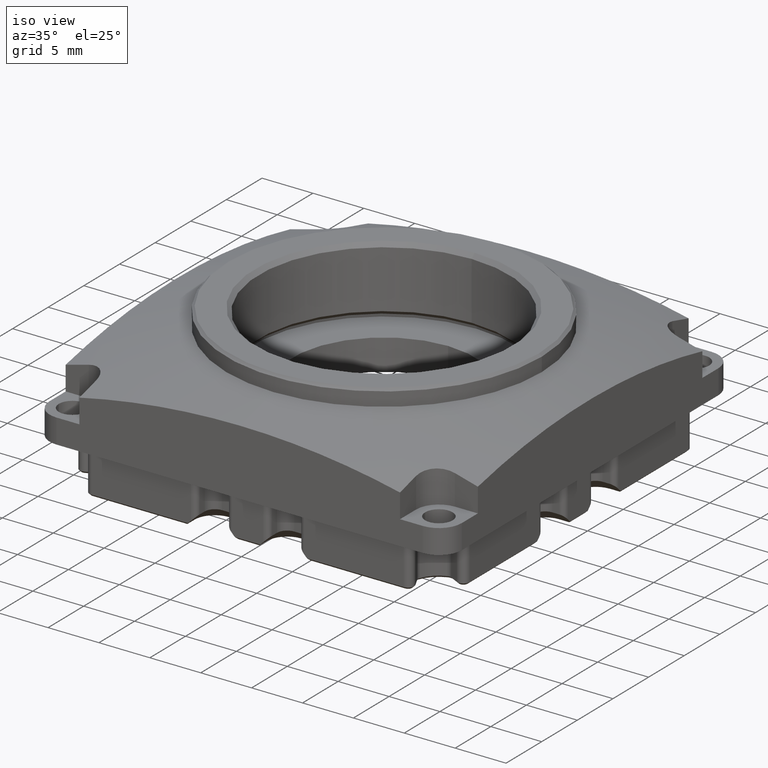
[diagram: clean part render]
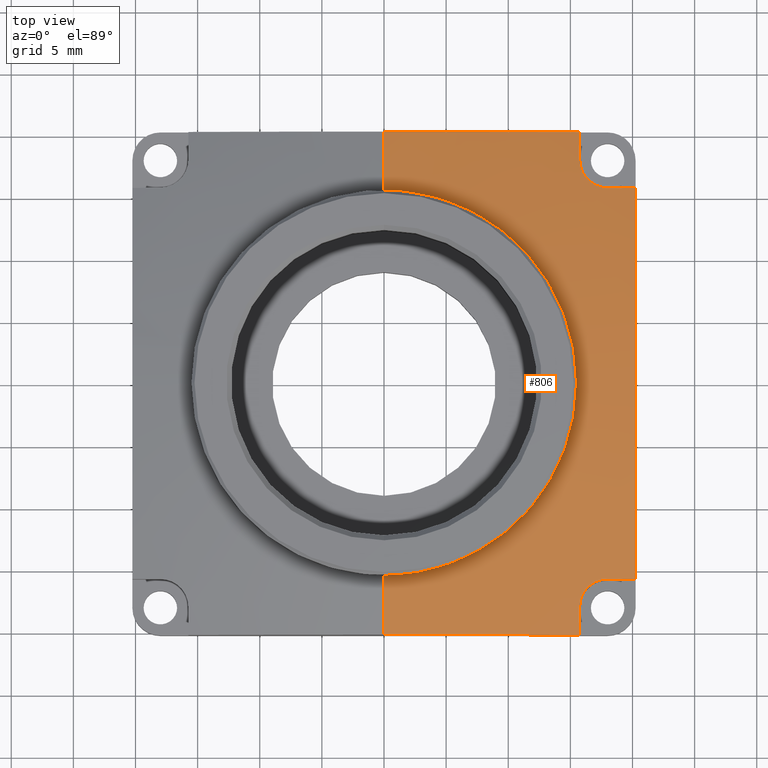
[diagram: tour spotlight — one face highlighted and labeled with its STEP entity id]
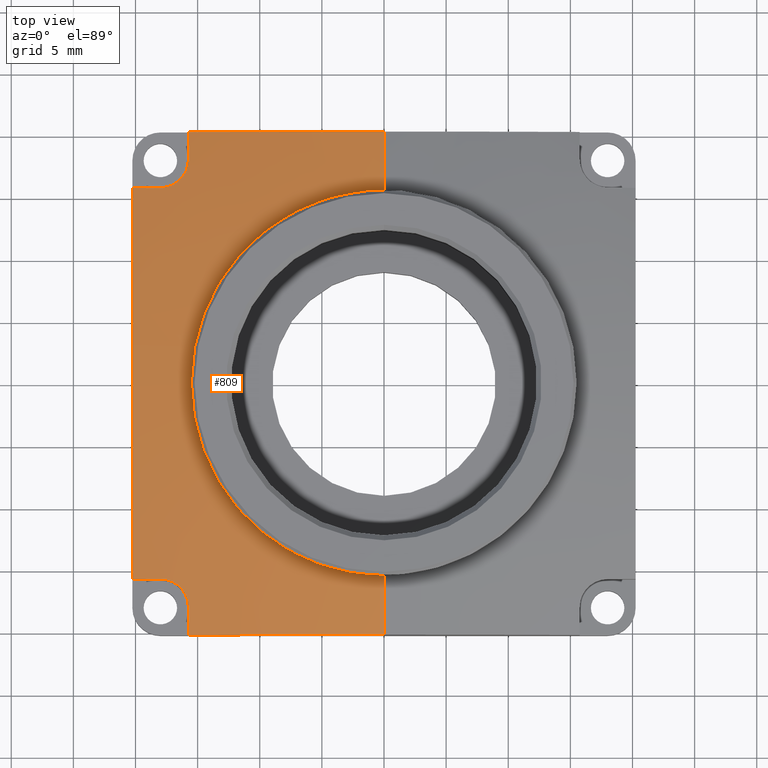
[diagram: tour spotlight — one face highlighted and labeled with its STEP entity id]
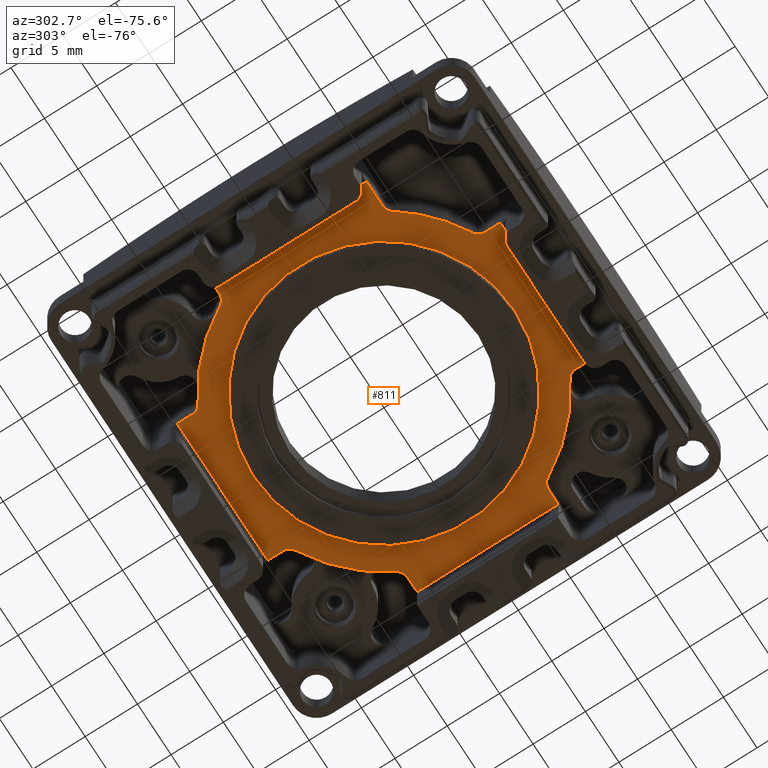
[diagram: tour spotlight — one face highlighted and labeled with its STEP entity id]
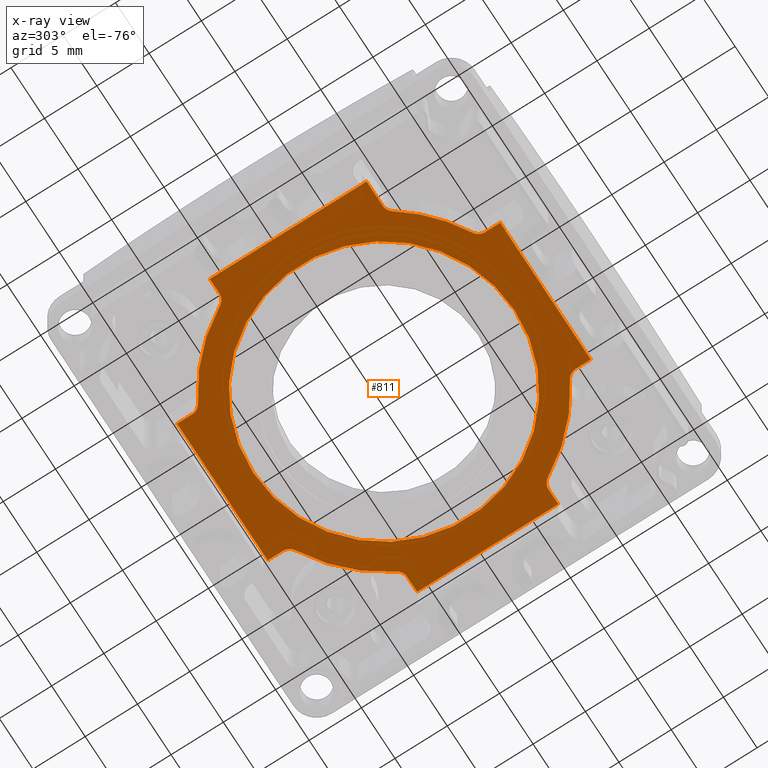
[diagram: x-ray of the same camera — body ghosted, this tour face saturated]
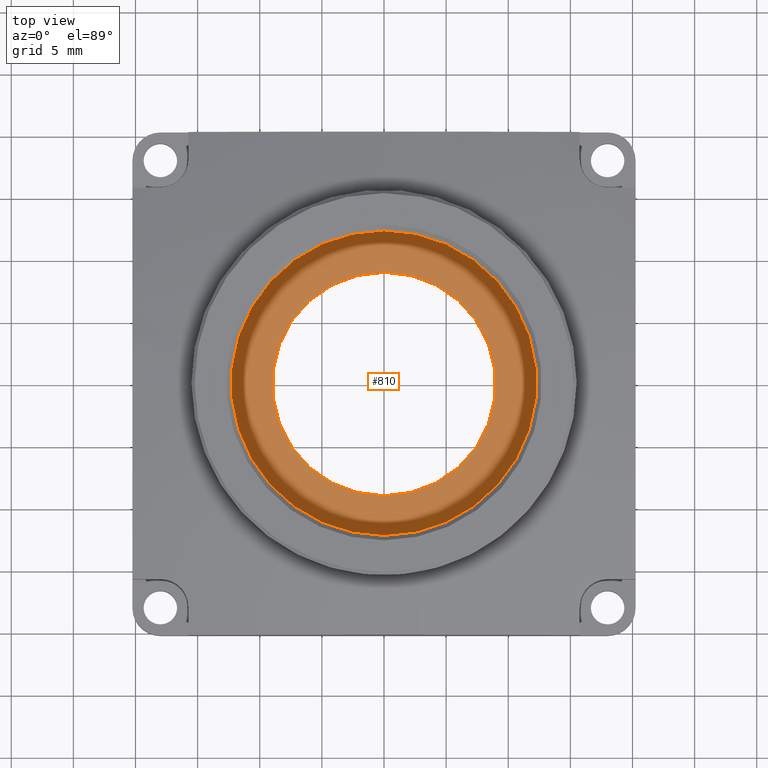
[diagram: tour spotlight — one face highlighted and labeled with its STEP entity id]
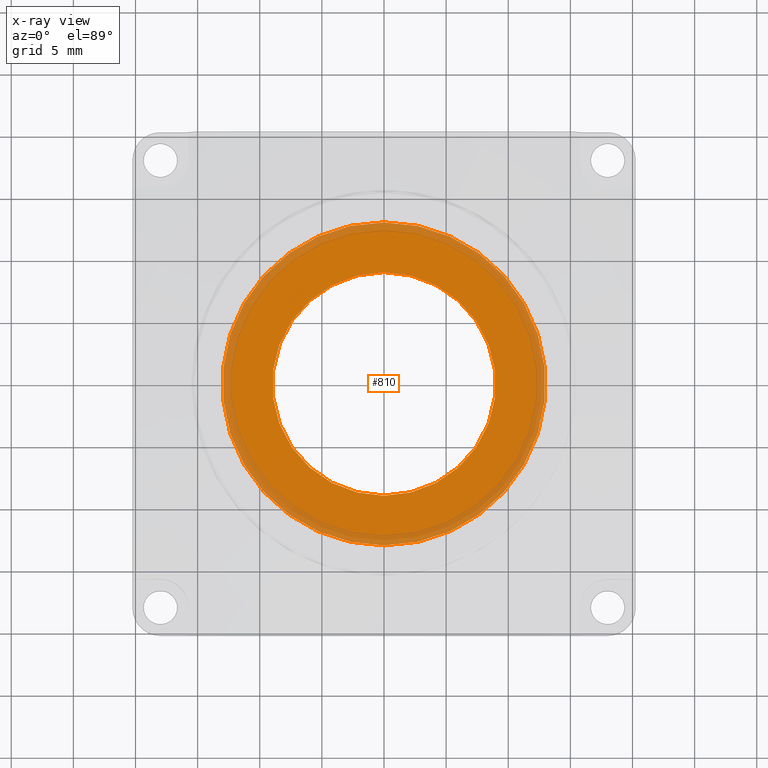
[diagram: x-ray of the same camera — body ghosted, this tour face saturated]
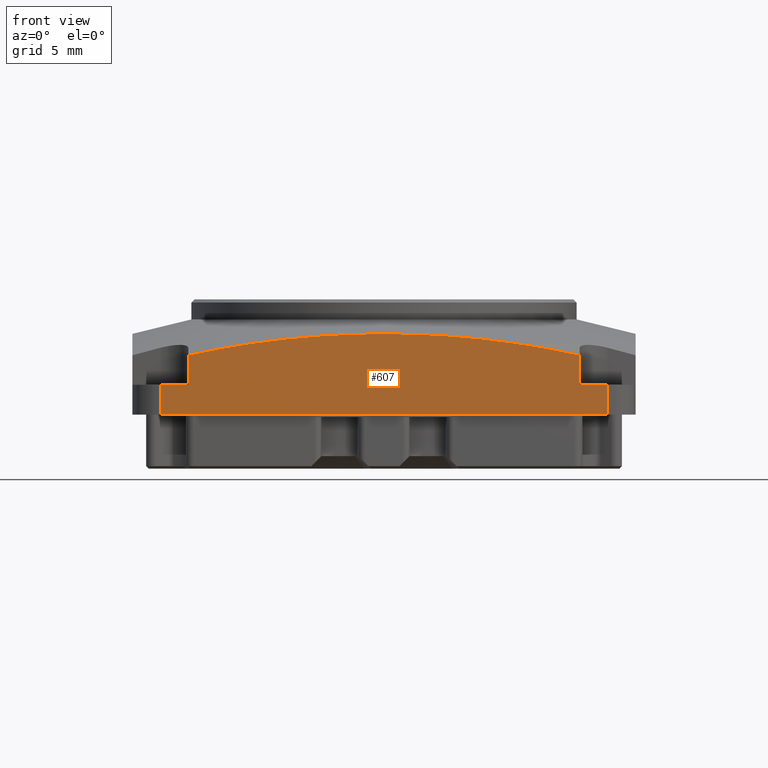
[diagram: tour spotlight — one face highlighted and labeled with its STEP entity id]
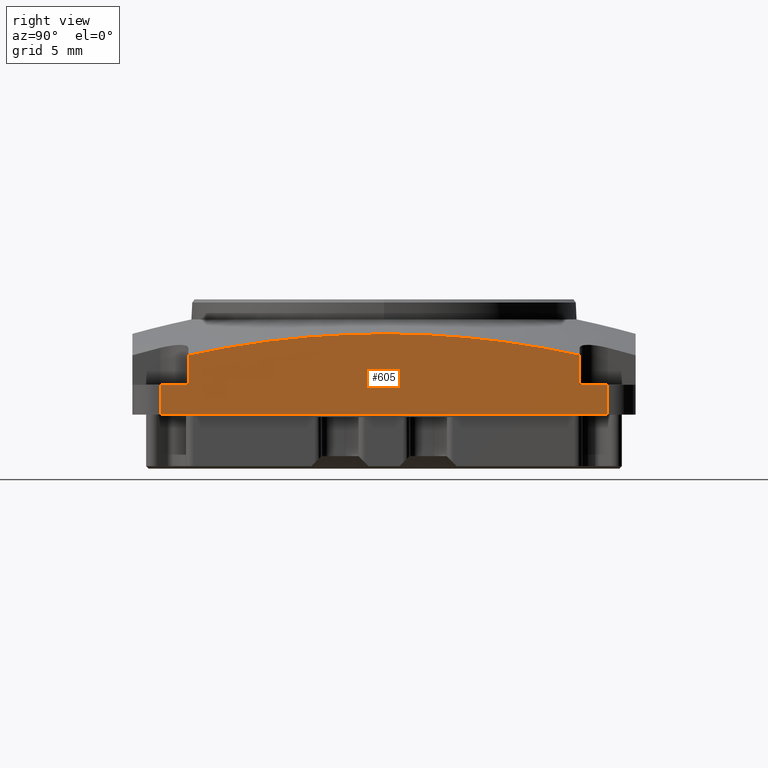
[diagram: tour spotlight — one face highlighted and labeled with its STEP entity id]
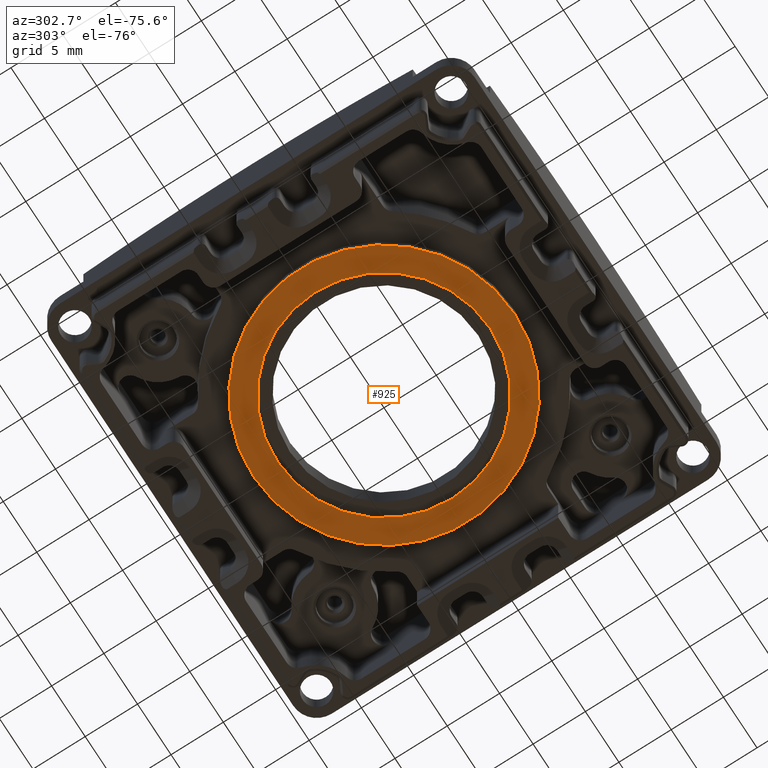
[diagram: tour spotlight — one face highlighted and labeled with its STEP entity id]
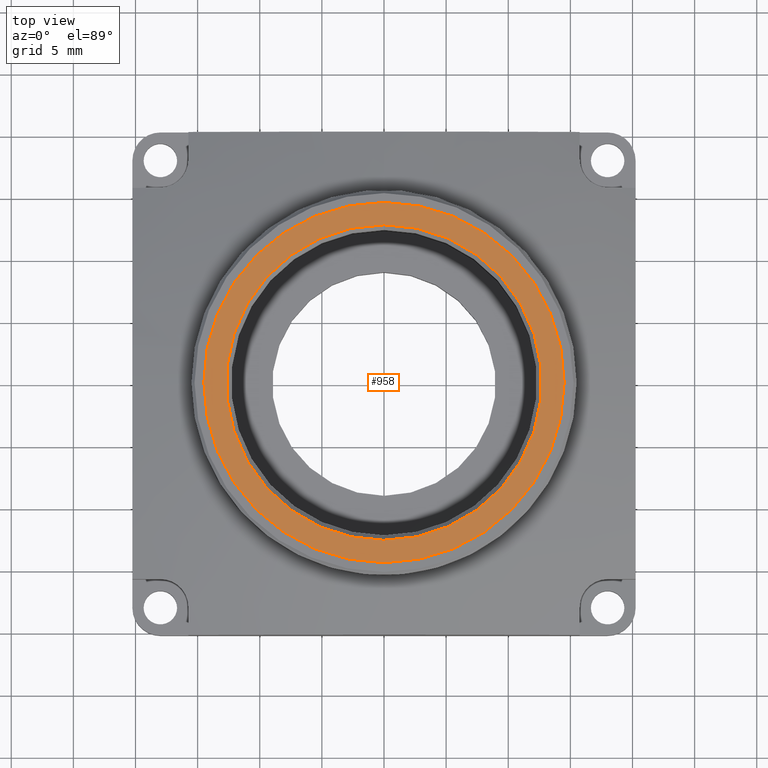
[diagram: tour spotlight — one face highlighted and labeled with its STEP entity id]
A machine part: a face-by-face anatomy tour. The part has 425 B-rep faces; the first image is the clean iso view, then the 8 largest visible faces are spotlighted one at a time (largest first), each with its STEP entity span.

Face 1 — top view, entity #806. In plain terms, the highlighted spherical surface has radius 75.4035 mm.
Definition (entity closure, byte-faithful):
#19=SPHERICAL_SURFACE('',#10691,75.4035018050466);
#806=ADVANCED_FACE('',(#1231),#19,.T.);
#1231=FACE_OUTER_BOUND('',#1689,.F.);
#1689=EDGE_LOOP('',(#3118,#3119,#3120,#3121,#3122,#3123,#3124,#3125,#3126,
#3127,#3128,#3129,#3130));
#3118=ORIENTED_EDGE('',*,*,#7644,.T.);
#3119=ORIENTED_EDGE('',*,*,#6949,.F.);
#3120=ORIENTED_EDGE('',*,*,#6943,.F.);
#3121=ORIENTED_EDGE('',*,*,#6941,.T.);
#3122=ORIENTED_EDGE('',*,*,#6942,.F.);
#3123=ORIENTED_EDGE('',*,*,#6948,.F.);
#3124=ORIENTED_EDGE('',*,*,#6945,.F.);
#3125=ORIENTED_EDGE('',*,*,#6944,.T.);
#3126=ORIENTED_EDGE('',*,*,#6946,.F.);
#3127=ORIENTED_EDGE('',*,*,#6947,.F.);
#3128=ORIENTED_EDGE('',*,*,#7643,.T.);
#3129=ORIENTED_EDGE('',*,*,#6929,.F.);
#3130=ORIENTED_EDGE('',*,*,#6930,.F.);
#6485=B_SPLINE_CURVE_WITH_KNOTS('',3,(#13935,#13936,#13937,#13938,#13939,
#13940,#13941,#13942,#13943),.UNSPECIFIED.,.F.,.F.,(4,1,1,1,1,1,4),(0.,0.195722745162091,
0.334272363656096,0.499996643167031,0.665720489316797,0.804273502584053,
1.),.UNSPECIFIED.);
#6486=B_SPLINE_CURVE_WITH_KNOTS('',3,(#13944,#13945,#13946,#13947,#13948,
#13949),.UNSPECIFIED.,.F.,.F.,(4,1,1,4),(0.,0.388882426202018,0.611104735399938,
1.),.UNSPECIFIED.);
#6487=B_SPLINE_CURVE_WITH_KNOTS('',3,(#13950,#13951,#13952,#13953,#13954,
#13955),.UNSPECIFIED.,.F.,.F.,(4,1,1,4),(0.,0.388895695557584,0.611117629474653,
1.),.UNSPECIFIED.);
#6488=B_SPLINE_CURVE_WITH_KNOTS('',3,(#13956,#13957,#13958,#13959,#13960,
#13961,#13962,#13963,#13964),.UNSPECIFIED.,.F.,.F.,(4,1,1,1,1,1,4),(0.,0.195722780090845,
0.334276008607449,0.500000536515706,0.665722115181062,0.804270485658548,
1.),.UNSPECIFIED.);
#6489=B_SPLINE_CURVE_WITH_KNOTS('',3,(#13965,#13966,#13967,#13968,#13969,
#13970),.UNSPECIFIED.,.F.,.F.,(4,1,1,4),(0.,0.388895264591296,0.611117573799259,
1.),.UNSPECIFIED.);
#6490=B_SPLINE_CURVE_WITH_KNOTS('',3,(#13971,#13972,#13973,#13974,#13975,
#13976),.UNSPECIFIED.,.F.,.F.,(4,1,1,4),(0.,0.388882370274556,0.611104304090351,
1.),.UNSPECIFIED.);
#6491=B_SPLINE_CURVE_WITH_KNOTS('',3,(#13977,#13978,#13979,#13980,#13981,
#13982),.UNSPECIFIED.,.F.,.F.,(4,1,1,4),(0.,0.388936537290058,0.611154345977415,
1.),.UNSPECIFIED.);
#6492=B_SPLINE_CURVE_WITH_KNOTS('',3,(#13983,#13984,#13985,#13986,#13987,
#13988,#13989,#13990,#13991,#13992),.UNSPECIFIED.,.F.,.F.,(4,1,1,1,1,1,1,
4),(0.,0.166651954956438,0.285699260477929,0.428564561865358,0.571435438132682,
0.714300739520617,0.833348045042723,1.),.UNSPECIFIED.);
#6493=B_SPLINE_CURVE_WITH_KNOTS('',3,(#13993,#13994,#13995,#13996,#13997,
#13998),.UNSPECIFIED.,.F.,.F.,(4,1,1,4),(0.,0.388845653991641,0.611063462721266,
1.),.UNSPECIFIED.);
#6537=CIRCLE('',#10106,15.5);
#6538=CIRCLE('',#10107,15.5);
#6770=CIRCLE('',#10339,75.4035018050466);
#6771=CIRCLE('',#10340,75.4035018050466);
#6929=EDGE_CURVE('',#10051,#10052,#6537,.T.);
#6930=EDGE_CURVE('',#10053,#10051,#6538,.T.);
#6941=EDGE_CURVE('',#10034,#10033,#6485,.T.);
#6942=EDGE_CURVE('',#10032,#10033,#6486,.T.);
#6943=EDGE_CURVE('',#10034,#10031,#6487,.T.);
#6944=EDGE_CURVE('',#10030,#10029,#6488,.T.);
#6945=EDGE_CURVE('',#10030,#10028,#6489,.T.);
#6946=EDGE_CURVE('',#10027,#10029,#6490,.T.);
#6947=EDGE_CURVE('',#10026,#10027,#6491,.T.);
#6948=EDGE_CURVE('',#10028,#10032,#6492,.T.);
#6949=EDGE_CURVE('',#10031,#10025,#6493,.T.);
#7643=EDGE_CURVE('',#10026,#10052,#6770,.T.);
#7644=EDGE_CURVE('',#10053,#10025,#6771,.T.);
#10025=VERTEX_POINT('',#13861);
#10026=VERTEX_POINT('',#13862);
#10027=VERTEX_POINT('',#13863);
#10028=VERTEX_POINT('',#13864);
#10029=VERTEX_POINT('',#13865);
#10030=VERTEX_POINT('',#13866);
#10031=VERTEX_POINT('',#13867);
#10032=VERTEX_POINT('',#13868);
#10033=VERTEX_POINT('',#13869);
#10034=VERTEX_POINT('',#13870);
#10051=VERTEX_POINT('',#13887);
#10052=VERTEX_POINT('',#13888);
#10053=VERTEX_POINT('',#13889);
#10106=AXIS2_PLACEMENT_3D('',#13923,#10931,#10932);
#10107=AXIS2_PLACEMENT_3D('',#13924,#10933,#10934);
#10339=AXIS2_PLACEMENT_3D('',#15003,#11828,#11829);
#10340=AXIS2_PLACEMENT_3D('',#15004,#11830,#11831);
#10691=AXIS2_PLACEMENT_3D('',#15590,#12767,#12768);
#10931=DIRECTION('',(0.,0.,-1.));
#10932=DIRECTION('',(1.,0.,0.));
#10933=DIRECTION('',(0.,0.,-1.));
#10934=DIRECTION('',(2.89876719677776E-07,0.999999999999958,0.));
#11828=DIRECTION('',(-1.,0.,0.));
#11829=DIRECTION('',(0.,-0.268555167673272,0.963264305326415));
#11830=DIRECTION('',(-1.,0.,0.));
#11831=DIRECTION('',(0.,0.205560745954179,0.978644358141793));
#12767=DIRECTION('',(0.,0.,1.));
#12768=DIRECTION('',(0.,-1.,0.));
#13861=CARTESIAN_POINT('',(6.49543768256228E-06,20.249992612398,6.50000208155392));
#13862=CARTESIAN_POINT('',(6.49543765833158E-06,-20.2499999918066,6.49999998037041));
#13863=CARTESIAN_POINT('',(15.7500071232071,-20.2500048381712,4.77180720905831));
#13864=CARTESIAN_POINT('',(20.2500049260386,-15.7500001432045,4.77180881998923));
#13865=CARTESIAN_POINT('',(15.7500069849177,-18.0000044829906,5.37611462647005));
#13866=CARTESIAN_POINT('',(18.0000114666578,-15.75,5.37611461480507));
#13867=CARTESIAN_POINT('',(15.750000123204,20.2499974591311,4.77181090996218));
#13868=CARTESIAN_POINT('',(20.2500049257107,15.7500001432044,4.77180885603019));
#13869=CARTESIAN_POINT('',(18.000004467281,15.75,5.37611641124811));
#13870=CARTESIAN_POINT('',(15.7499999849177,18.0000044826493,5.37611620749345));
#13887=CARTESIAN_POINT('',(15.5,0.,7.65970982059785));
#13888=CARTESIAN_POINT('',(5.1605386733593E-06,-15.4999999999984,7.65970983160435));
#13889=CARTESIAN_POINT('',(5.16053866275621E-06,15.5000000524001,7.65970983160369));
#13923=CARTESIAN_POINT('',(0.,0.,7.6597098205982));
#13924=CARTESIAN_POINT('',(0.,0.,7.65970982059718));
#13935=CARTESIAN_POINT('',(15.7499999842628,17.9999998828751,5.3761185062081));
#13936=CARTESIAN_POINT('',(15.7497920573884,17.7741302201016,5.43305716428891));
#13937=CARTESIAN_POINT('',(15.8085325422142,17.385341971661,5.51596169202965));
#13938=CARTESIAN_POINT('',(16.0468273640555,16.8392665831796,5.59326167853343));
#13939=CARTESIAN_POINT('',(16.3904814571824,16.3905125478258,5.61960073106723));
#13940=CARTESIAN_POINT('',(16.839241331539,16.0467497568912,5.59330704291233));
#13941=CARTESIAN_POINT('',(17.3853706536745,15.808788775482,5.51583350162874));
#13942=CARTESIAN_POINT('',(17.7741171062318,15.7494952203278,5.43319976586207));
#13943=CARTESIAN_POINT('',(17.9999998700155,15.7499999998595,5.37611870533698));
#13944=CARTESIAN_POINT('',(20.2500146527519,15.7499998315238,4.77180661013591));
#13945=CARTESIAN_POINT('',(19.9596143852073,15.7500001188704,4.85474262808686));
#13946=CARTESIAN_POINT('',(19.5024698328328,15.7499996421191,4.98226748649994));
#13947=CARTESIAN_POINT('',(18.7524296161023,15.7499998837082,5.1837145065966));
#13948=CARTESIAN_POINT('',(18.2928984578627,15.7500002093304,5.30239184283546));
#13949=CARTESIAN_POINT('',(18.0000135382368,15.7499999402359,5.37611527834614));
#13950=CARTESIAN_POINT('',(15.7499999345539,18.0000135550178,5.37611507136185));
#13951=CARTESIAN_POINT('',(15.7500000319567,18.2928978298511,5.30239181200087));
#13952=CARTESIAN_POINT('',(15.7499998329097,18.7524274914048,5.18371480966284));
#13953=CARTESIAN_POINT('',(15.7499998819146,19.5024651885576,4.98226835352871));
#13954=CARTESIAN_POINT('',(15.7500001056864,19.9596079182764,4.85474407397223));
#13955=CARTESIAN_POINT('',(15.7499996799084,20.2500071835964,4.77180835606796));
#13956=CARTESIAN_POINT('',(18.0000068681407,-15.7499999998925,5.37611690916954));
#13957=CARTESIAN_POINT('',(17.7741382999486,-15.7498487752388,5.43302862392873));
#13958=CARTESIAN_POINT('',(17.3853363747653,-15.8084911245042,5.51598324164691));
#13959=CARTESIAN_POINT('',(16.8392669944979,-16.0468586754146,5.59324876028554));
#13960=CARTESIAN_POINT('',(16.3905117118193,-16.3904813018487,5.61960277491143));
#13961=CARTESIAN_POINT('',(16.046709974389,-16.839252910984,5.59332162351996));
#13962=CARTESIAN_POINT('',(15.8089985284908,-17.3854016641018,5.51572799122959));
#13963=CARTESIAN_POINT('',(15.749217908129,-17.7741078663729,5.43333353395622));
#13964=CARTESIAN_POINT('',(15.7500069841253,-17.9999998839984,5.37611692467006));
#13965=CARTESIAN_POINT('',(18.0000205382393,-15.7499999402325,5.37611348174434));
#13966=CARTESIAN_POINT('',(18.2929045435372,-15.75000020927,5.30239024616845));
#13967=CARTESIAN_POINT('',(18.7524342686253,-15.7499998839424,5.18371323968692));
#13968=CARTESIAN_POINT('',(19.5024721528913,-15.7499996418959,4.9822668091581));
#13969=CARTESIAN_POINT('',(19.9596152876033,-15.7500001181239,4.85474233963873));
#13970=CARTESIAN_POINT('',(20.2500146541527,-15.7499998318156,4.77180657320933));
#13971=CARTESIAN_POINT('',(15.7500066780952,-20.2500145593352,4.77180465964869));
#13972=CARTESIAN_POINT('',(15.7500071072407,-19.9596143422935,4.85474066609423));
#13973=CARTESIAN_POINT('',(15.7500068821215,-19.5024701211391,4.98226541505517));
#13974=CARTESIAN_POINT('',(15.7500068323451,-18.7524299662396,5.18371258102134));
#13975=CARTESIAN_POINT('',(15.7500070323709,-18.2928987938552,5.30238998493524));
#13976=CARTESIAN_POINT('',(15.7500069348799,-18.0000135549818,5.37611349024143));
#13977=CARTESIAN_POINT('',(6.48988858450814E-06,-20.2499999918064,6.49999998037081));
#13978=CARTESIAN_POINT('',(2.05829365652238,-20.250021823305,6.49999994781413));
#13979=CARTESIAN_POINT('',(5.29184285539842,-20.2499871451885,6.36249366406992));
#13980=CARTESIAN_POINT('',(10.5552159288556,-20.2500036612267,5.78490503050373));
#13981=CARTESIAN_POINT('',(13.7411663345258,-20.2499979745086,5.21803371350374));
#13982=CARTESIAN_POINT('',(15.7500091918486,-20.2500001770446,4.77180814117882));
#13983=CARTESIAN_POINT('',(20.2500025179109,-15.7499999522637,4.77180969297896));
#13984=CARTESIAN_POINT('',(20.2499996136131,-14.0282038194073,5.15427440497723));
#13985=CARTESIAN_POINT('',(20.2499986926862,-11.0529062298854,5.70231253205944));
#13986=CARTESIAN_POINT('',(20.2499997847304,-6.54743730970562,6.24425964105236));
#13987=CARTESIAN_POINT('',(20.2500089562938,-2.26938416430171,6.51179919134352));
#13988=CARTESIAN_POINT('',(20.2500089562968,2.26938416038627,6.5117991963759));
#13989=CARTESIAN_POINT('',(20.2499997847294,6.54743730639547,6.2442596555733));
#13990=CARTESIAN_POINT('',(20.2499986926873,11.0529062277976,5.70231255656797));
#13991=CARTESIAN_POINT('',(20.2499996136103,14.0282038185499,5.15427443608139));
#13992=CARTESIAN_POINT('',(20.2500025179099,15.7499999522629,4.77180972789794));
#13993=CARTESIAN_POINT('',(15.7500021918682,20.2499927976363,4.77181184846042));
#13994=CARTESIAN_POINT('',(13.7411601960564,20.2499905951142,5.21803700775582));
#13995=CARTESIAN_POINT('',(10.5552111848702,20.2499962818513,5.7849077982139));
#13996=CARTESIAN_POINT('',(5.29184046357529,20.2499797654868,6.36249589367115));
#13997=CARTESIAN_POINT('',(2.05829272582885,20.2500144442674,6.50000204889615));
#13998=CARTESIAN_POINT('',(6.48988841578061E-06,20.2499926123978,6.5000020815542));
#15003=CARTESIAN_POINT('',(6.49543770229445E-06,7.85990942385987E-08,-66.1335018050467));
#15004=CARTESIAN_POINT('',(6.49543770229445E-06,7.85990942385987E-08,-66.1335018050467));
#15590=CARTESIAN_POINT('',(6.49543770229445E-06,7.86002879503948E-08,-66.1335018050467));

Face 2 — top view, entity #809. In plain terms, the highlighted spherical surface has radius 75.4035 mm.
Definition (entity closure, byte-faithful):
#20=SPHERICAL_SURFACE('',#10694,75.4035018050466);
#809=ADVANCED_FACE('',(#1234),#20,.T.);
#1234=FACE_OUTER_BOUND('',#1692,.F.);
#1692=EDGE_LOOP('',(#3139,#3140,#3141,#3142,#3143,#3144,#3145,#3146,#3147,
#3148,#3149,#3150,#3151));
#3139=ORIENTED_EDGE('',*,*,#7643,.F.);
#3140=ORIENTED_EDGE('',*,*,#6951,.F.);
#3141=ORIENTED_EDGE('',*,*,#6956,.F.);
#3142=ORIENTED_EDGE('',*,*,#6958,.T.);
#3143=ORIENTED_EDGE('',*,*,#6957,.F.);
#3144=ORIENTED_EDGE('',*,*,#6952,.F.);
#3145=ORIENTED_EDGE('',*,*,#6953,.F.);
#3146=ORIENTED_EDGE('',*,*,#6955,.T.);
#3147=ORIENTED_EDGE('',*,*,#6954,.F.);
#3148=ORIENTED_EDGE('',*,*,#6950,.F.);
#3149=ORIENTED_EDGE('',*,*,#7644,.F.);
#3150=ORIENTED_EDGE('',*,*,#6927,.F.);
#3151=ORIENTED_EDGE('',*,*,#6928,.F.);
#6494=B_SPLINE_CURVE_WITH_KNOTS('',3,(#13999,#14000,#14001,#14002,#14003,
#14004),.UNSPECIFIED.,.F.,.F.,(4,1,1,4),(0.,0.388936537310627,0.611154346037761,
1.),.UNSPECIFIED.);
#6495=B_SPLINE_CURVE_WITH_KNOTS('',3,(#14005,#14006,#14007,#14008,#14009,
#14010),.UNSPECIFIED.,.F.,.F.,(4,1,1,4),(0.,0.388845654027359,0.611063462715123,
1.),.UNSPECIFIED.);
#6496=B_SPLINE_CURVE_WITH_KNOTS('',3,(#14011,#14012,#14013,#14014,#14015,
#14016,#14017,#14018,#14019,#14020),.UNSPECIFIED.,.F.,.F.,(4,1,1,1,1,1,1,
4),(0.,0.166651954952925,0.285699260493636,0.428564561874716,0.571435438127242,
0.714300739507821,0.833348045047914,1.),.UNSPECIFIED.);
#6497=B_SPLINE_CURVE_WITH_KNOTS('',3,(#14021,#14022,#14023,#14024,#14025,
#14026),.UNSPECIFIED.,.F.,.F.,(4,1,1,4),(0.,0.388895264633936,0.611117573838704,
1.),.UNSPECIFIED.);
#6498=B_SPLINE_CURVE_WITH_KNOTS('',3,(#14027,#14028,#14029,#14030,#14031,
#14032),.UNSPECIFIED.,.F.,.F.,(4,1,1,4),(0.,0.388882370290708,0.611104304108921,
1.),.UNSPECIFIED.);
#6499=B_SPLINE_CURVE_WITH_KNOTS('',3,(#14033,#14034,#14035,#14036,#14037,
#14038,#14039,#14040,#14041),.UNSPECIFIED.,.F.,.F.,(4,1,1,1,1,1,4),(0.,0.195722762774594,
0.334275913613863,0.500000333440404,0.665721996848034,0.8042704596397,1.),
 .UNSPECIFIED.);
#6500=B_SPLINE_CURVE_WITH_KNOTS('',3,(#14042,#14043,#14044,#14045,#14046,
#14047),.UNSPECIFIED.,.F.,.F.,(4,1,1,4),(0.,0.388895695589845,0.611117629508781,
1.),.UNSPECIFIED.);
#6501=B_SPLINE_CURVE_WITH_KNOTS('',3,(#14048,#14049,#14050,#14051,#14052,
#14053),.UNSPECIFIED.,.F.,.F.,(4,1,1,4),(0.,0.388882426175234,0.611104735369415,
1.),.UNSPECIFIED.);
#6502=B_SPLINE_CURVE_WITH_KNOTS('',3,(#14054,#14055,#14056,#14057,#14058,
#14059,#14060,#14061,#14062),.UNSPECIFIED.,.F.,.F.,(4,1,1,1,1,1,4),(0.,0.195722770166522,
0.334272479880705,0.499996843157957,0.665720580836097,0.804273517158372,
1.),.UNSPECIFIED.);
#6535=CIRCLE('',#10104,15.5);
#6536=CIRCLE('',#10105,15.5);
#6770=CIRCLE('',#10339,75.4035018050466);
#6771=CIRCLE('',#10340,75.4035018050466);
#6927=EDGE_CURVE('',#10054,#10053,#6535,.T.);
#6928=EDGE_CURVE('',#10052,#10054,#6536,.T.);
#6950=EDGE_CURVE('',#10025,#10024,#6494,.T.);
#6951=EDGE_CURVE('',#10023,#10026,#6495,.T.);
#6952=EDGE_CURVE('',#10022,#10021,#6496,.T.);
#6953=EDGE_CURVE('',#10020,#10022,#6497,.T.);
#6954=EDGE_CURVE('',#10024,#10019,#6498,.T.);
#6955=EDGE_CURVE('',#10020,#10019,#6499,.T.);
#6956=EDGE_CURVE('',#10018,#10023,#6500,.T.);
#6957=EDGE_CURVE('',#10021,#10017,#6501,.T.);
#6958=EDGE_CURVE('',#10018,#10017,#6502,.T.);
#7643=EDGE_CURVE('',#10026,#10052,#6770,.T.);
#7644=EDGE_CURVE('',#10053,#10025,#6771,.T.);
#10017=VERTEX_POINT('',#13853);
#10018=VERTEX_POINT('',#13854);
#10019=VERTEX_POINT('',#13855);
#10020=VERTEX_POINT('',#13856);
#10021=VERTEX_POINT('',#13857);
#10022=VERTEX_POINT('',#13858);
#10023=VERTEX_POINT('',#13859);
#10024=VERTEX_POINT('',#13860);
#10025=VERTEX_POINT('',#13861);
#10026=VERTEX_POINT('',#13862);
#10052=VERTEX_POINT('',#13888);
#10053=VERTEX_POINT('',#13889);
#10054=VERTEX_POINT('',#13890);
#10104=AXIS2_PLACEMENT_3D('',#13921,#10927,#10928);
#10105=AXIS2_PLACEMENT_3D('',#13922,#10929,#10930);
#10339=AXIS2_PLACEMENT_3D('',#15003,#11828,#11829);
#10340=AXIS2_PLACEMENT_3D('',#15004,#11830,#11831);
#10694=AXIS2_PLACEMENT_3D('',#15593,#12773,#12774);
#10927=DIRECTION('',(0.,0.,-1.));
#10928=DIRECTION('',(-1.,0.,0.));
#10929=DIRECTION('',(0.,0.,-1.));
#10930=DIRECTION('',(2.89876721132509E-07,-0.999999999999958,0.));
#11828=DIRECTION('',(-1.,0.,0.));
#11829=DIRECTION('',(0.,-0.268555167673272,0.963264305326415));
#11830=DIRECTION('',(-1.,0.,0.));
#11831=DIRECTION('',(0.,0.205560745954179,0.978644358141793));
#12773=DIRECTION('',(0.,0.,1.));
#12774=DIRECTION('',(0.,-1.,0.));
#13853=CARTESIAN_POINT('',(-17.9999974977484,-15.75,5.37611486096125));
#13854=CARTESIAN_POINT('',(-15.7499930150823,-18.0000044826487,5.37611484178923));
#13855=CARTESIAN_POINT('',(-15.7499930150823,18.00000448299,5.37611488165563));
#13856=CARTESIAN_POINT('',(-17.9999974971253,15.75,5.37611489576684));
#13857=CARTESIAN_POINT('',(-20.250004784596,-15.7500001432055,4.77180515134492));
#13858=CARTESIAN_POINT('',(-20.2500047846138,15.7500001432055,4.77180518522928));
#13859=CARTESIAN_POINT('',(-15.7499931533715,-20.250004838217,4.77180742021885));
#13860=CARTESIAN_POINT('',(-15.7499931533705,20.2499974590858,4.7718095788189));
#13861=CARTESIAN_POINT('',(6.49543768256228E-06,20.249992612398,6.50000208155392));
#13862=CARTESIAN_POINT('',(6.49543765833158E-06,-20.2499999918066,6.49999998037041));
#13888=CARTESIAN_POINT('',(5.1605386733593E-06,-15.4999999999984,7.65970983160435));
#13889=CARTESIAN_POINT('',(5.16053866275621E-06,15.5000000524001,7.65970983160369));
#13890=CARTESIAN_POINT('',(-15.5,0.,7.6597098536167));
#13921=CARTESIAN_POINT('',(0.,0.,7.65970985361677));
#13922=CARTESIAN_POINT('',(0.,0.,7.65970985361667));
#13999=CARTESIAN_POINT('',(6.50098694776122E-06,20.249992612398,6.50000208155366));
#14000=CARTESIAN_POINT('',(-2.0582805347632,20.250014444289,6.50000204889623));
#14001=CARTESIAN_POINT('',(-5.29182952832282,20.2499797654824,6.36249578679102));
#14002=CARTESIAN_POINT('',(-10.5552022721247,20.2499962818515,5.78490724316319));
#14003=CARTESIAN_POINT('',(-13.7411524837717,20.2499905950867,5.21803601425047));
#14004=CARTESIAN_POINT('',(-15.7499952219707,20.2499927976295,4.77181051104144));
#14005=CARTESIAN_POINT('',(-15.7499952220231,-20.2500001770454,4.77180835862874));
#14006=CARTESIAN_POINT('',(-13.7411524854051,-20.2499979745124,5.21803387503745));
#14007=CARTESIAN_POINT('',(-10.5552022749175,-20.2500036612282,5.78490512074722));
#14008=CARTESIAN_POINT('',(-5.29182953030002,-20.2499871451859,6.36249368145179));
#14009=CARTESIAN_POINT('',(-2.05828053560597,-20.2500218233035,6.49999994781072));
#14010=CARTESIAN_POINT('',(6.50098673526742E-06,-20.2499999918067,6.4999999803702));
#14011=CARTESIAN_POINT('',(-20.250002377061,15.7499999519911,4.77180605811023));
#14012=CARTESIAN_POINT('',(-20.2499994727532,14.028203821165,5.15427078539599));
#14013=CARTESIAN_POINT('',(-20.2499985518173,11.0529062327985,5.70230893356596));
#14014=CARTESIAN_POINT('',(-20.2499996439025,6.54743731083825,6.2442560600202));
#14015=CARTESIAN_POINT('',(-20.2500088155885,2.26938416213234,6.51179561438807));
#14016=CARTESIAN_POINT('',(-20.2500088155855,-2.26938416604767,6.51179560935584));
#14017=CARTESIAN_POINT('',(-20.249999643902,-6.54743731414834,6.24425604549971));
#14018=CARTESIAN_POINT('',(-20.2499985518173,-11.0529062348863,5.70230890905747));
#14019=CARTESIAN_POINT('',(-20.2499994727529,-14.0282038220222,5.15427075429236));
#14020=CARTESIAN_POINT('',(-20.2500023770604,-15.7499999519919,4.77180602319184));
#14021=CARTESIAN_POINT('',(-18.0000065684034,15.7499999402325,5.37611376278597));
#14022=CARTESIAN_POINT('',(-18.2928923813815,15.7500002092679,5.3023900764902));
#14023=CARTESIAN_POINT('',(-18.7524249382902,15.7499998839487,5.18371232685958));
#14024=CARTESIAN_POINT('',(-19.5024674323597,15.7499996418735,4.98226459097188));
#14025=CARTESIAN_POINT('',(-19.9596133687059,15.7500001181594,4.85473926934923));
#14026=CARTESIAN_POINT('',(-20.2500145115156,15.7499998317878,4.77180293877412));
#14027=CARTESIAN_POINT('',(-15.7499927082768,20.2500071808953,4.77180702921885));
#14028=CARTESIAN_POINT('',(-15.7499931373926,19.9596079116424,4.85474273135487));
#14029=CARTESIAN_POINT('',(-15.7499929122929,19.5024651854367,4.98226702049861));
#14030=CARTESIAN_POINT('',(-15.7499928625115,18.7524274904103,5.18371348156018));
#14031=CARTESIAN_POINT('',(-15.7499930625333,18.2928978291889,5.3023904838485));
#14032=CARTESIAN_POINT('',(-15.7499929650446,18.0000135549818,5.37611374542676));
#14033=CARTESIAN_POINT('',(-17.9999928992123,15.7499999999189,5.37611718997171));
#14034=CARTESIAN_POINT('',(-17.7741238507977,15.7498441165303,5.4330310649518));
#14035=CARTESIAN_POINT('',(-17.385323887132,15.808498350991,5.51597987700606));
#14036=CARTESIAN_POINT('',(-16.8392510770437,16.0468545091066,5.59325169698142));
#14037=CARTESIAN_POINT('',(-16.3905022393113,16.3904857947662,5.61959893772003));
#14038=CARTESIAN_POINT('',(-16.0466891445933,16.8392491967874,5.59332676603601));
#14039=CARTESIAN_POINT('',(-15.8089877668426,17.3854024774015,5.51572626543782));
#14040=CARTESIAN_POINT('',(-15.7492028197506,17.7741074685088,5.43333451090951));
#14041=CARTESIAN_POINT('',(-15.7499930142899,17.9999998839967,5.37611717985596));
#14042=CARTESIAN_POINT('',(-15.7499929647183,-18.0000135550175,5.37611370565745));
#14043=CARTESIAN_POINT('',(-15.7499930621289,-18.2928987945654,5.30239020141029));
#14044=CARTESIAN_POINT('',(-15.7499928630637,-18.7524299673342,5.18371279558736));
#14045=CARTESIAN_POINT('',(-15.749992912081,-19.5024701243608,4.98226563138892));
#14046=CARTESIAN_POINT('',(-15.7499931358576,-19.959614348982,4.85474089002289));
#14047=CARTESIAN_POINT('',(-15.7499927100653,-20.2500145620373,4.77180486651139));
#14048=CARTESIAN_POINT('',(-20.250014511044,-15.7499998314945,4.77180290559881));
#14049=CARTESIAN_POINT('',(-19.9596133668374,-15.7500001189124,4.8547392308609));
#14050=CARTESIAN_POINT('',(-19.502467431438,-15.7499996420956,4.98226455515298));
#14051=CARTESIAN_POINT('',(-18.7524249382996,-15.7499998837133,5.18371229346084));
#14052=CARTESIAN_POINT('',(-18.2928923811853,-15.7500002093278,5.30239004154842));
#14053=CARTESIAN_POINT('',(-18.0000065684045,-15.7499999402366,5.37611372813787));
#14054=CARTESIAN_POINT('',(-15.7499930144275,-17.9999998828731,5.37611714050449));
#14055=CARTESIAN_POINT('',(-15.7497839687728,-17.7741298229347,5.43305652257496));
#14056=CARTESIAN_POINT('',(-15.8085287794298,-17.3853427840005,5.51595834626792));
#14057=CARTESIAN_POINT('',(-16.0468135363302,-16.8392628641846,5.59326518200207));
#14058=CARTESIAN_POINT('',(-16.3904789911264,-16.3905170401159,5.6195952205259));
#14059=CARTESIAN_POINT('',(-16.8392324170213,-16.0467455744216,5.59330827199693));
#14060=CARTESIAN_POINT('',(-17.3853651798574,-15.8087960341522,5.51582835051902));
#14061=CARTESIAN_POINT('',(-17.7741096554776,-15.7494905185618,5.43320041874132));
#14062=CARTESIAN_POINT('',(-17.9999929010834,-15.7499999998855,5.3761171548929));
#15003=CARTESIAN_POINT('',(6.49543770229445E-06,7.85990942385987E-08,-66.1335018050467));
#15004=CARTESIAN_POINT('',(6.49543770229445E-06,7.85990942385987E-08,-66.1335018050467));
#15593=CARTESIAN_POINT('',(6.49543770229445E-06,7.86002879503948E-08,-66.1335018050467));

Face 3 — auxiliary view, entity #811. An x-ray twin of the same camera follows (body ghosted, this face saturated) — the face is partly hidden behind the body. In plain terms, the highlighted planar face has unit normal (0, 0, -1).
Definition (entity closure, byte-faithful):
#811=ADVANCED_FACE('',(#1462,#1236),#4260,.T.);
#1236=FACE_OUTER_BOUND('',#1696,.F.);
#1462=FACE_BOUND('',#1695,.F.);
#1695=EDGE_LOOP('',(#3156,#3157));
#1696=EDGE_LOOP('',(#3158,#3159,#3160,#3161,#3162,#3163,#3164,#3165,#3166,
#3167,#3168,#3169,#3170,#3171,#3172,#3173,#3174,#3175,#3176,#3177,#3178,
#3179,#3180,#3181,#3182,#3183,#3184,#3185,#3186,#3187));
#3156=ORIENTED_EDGE('',*,*,#7663,.F.);
#3157=ORIENTED_EDGE('',*,*,#7662,.F.);
#3158=ORIENTED_EDGE('',*,*,#7650,.F.);
#3159=ORIENTED_EDGE('',*,*,#7651,.F.);
#3160=ORIENTED_EDGE('',*,*,#7648,.F.);
#3161=ORIENTED_EDGE('',*,*,#6993,.F.);
#3162=ORIENTED_EDGE('',*,*,#6994,.F.);
#3163=ORIENTED_EDGE('',*,*,#6995,.T.);
#3164=ORIENTED_EDGE('',*,*,#6996,.F.);
#3165=ORIENTED_EDGE('',*,*,#6997,.F.);
#3166=ORIENTED_EDGE('',*,*,#7664,.F.);
#3167=ORIENTED_EDGE('',*,*,#6979,.F.);
#3168=ORIENTED_EDGE('',*,*,#6980,.F.);
#3169=ORIENTED_EDGE('',*,*,#6981,.T.);
#3170=ORIENTED_EDGE('',*,*,#6982,.F.);
#3171=ORIENTED_EDGE('',*,*,#6983,.F.);
#3172=ORIENTED_EDGE('',*,*,#7660,.F.);
#3173=ORIENTED_EDGE('',*,*,#7661,.F.);
#3174=ORIENTED_EDGE('',*,*,#7658,.F.);
#3175=ORIENTED_EDGE('',*,*,#6967,.F.);
#3176=ORIENTED_EDGE('',*,*,#6968,.F.);
#3177=ORIENTED_EDGE('',*,*,#6969,.T.);
#3178=ORIENTED_EDGE('',*,*,#6970,.F.);
#3179=ORIENTED_EDGE('',*,*,#6971,.F.);
#3180=ORIENTED_EDGE('',*,*,#7655,.F.);
#3181=ORIENTED_EDGE('',*,*,#7656,.F.);
#3182=ORIENTED_EDGE('',*,*,#7653,.F.);
#3183=ORIENTED_EDGE('',*,*,#6998,.F.);
#3184=ORIENTED_EDGE('',*,*,#6999,.F.);
#3185=ORIENTED_EDGE('',*,*,#7000,.T.);
#3186=ORIENTED_EDGE('',*,*,#7001,.F.);
#3187=ORIENTED_EDGE('',*,*,#7002,.F.);
#4260=PLANE('',#10696);
#6557=CIRCLE('',#10126,1.00000000000006);
#6558=CIRCLE('',#10127,15.);
#6559=CIRCLE('',#10128,1.);
#6566=CIRCLE('',#10135,0.999999999999983);
#6567=CIRCLE('',#10136,15.);
#6568=CIRCLE('',#10137,1.);
#6576=CIRCLE('',#10145,1.00000000000003);
#6577=CIRCLE('',#10146,15.);
#6578=CIRCLE('',#10147,1.);
#6579=CIRCLE('',#10148,0.999999999999989);
#6580=CIRCLE('',#10149,15.);
#6581=CIRCLE('',#10150,1.);
#6774=CIRCLE('',#10343,12.5);
#6775=CIRCLE('',#10344,12.5);
#6967=EDGE_CURVE('',#10006,#10005,#8035,.T.);
#6968=EDGE_CURVE('',#10004,#10006,#6557,.T.);
#6969=EDGE_CURVE('',#10004,#10003,#6558,.T.);
#6970=EDGE_CURVE('',#10002,#10003,#6559,.T.);
#6971=EDGE_CURVE('',#10001,#10002,#8036,.T.);
#6979=EDGE_CURVE('',#9990,#9992,#8038,.T.);
#6980=EDGE_CURVE('',#9989,#9990,#6566,.T.);
#6981=EDGE_CURVE('',#9989,#9988,#6567,.T.);
#6982=EDGE_CURVE('',#9987,#9988,#6568,.T.);
#6983=EDGE_CURVE('',#9986,#9987,#8039,.T.);
#6993=EDGE_CURVE('',#9973,#9972,#8042,.T.);
#6994=EDGE_CURVE('',#9971,#9973,#6576,.T.);
#6995=EDGE_CURVE('',#9971,#9970,#6577,.T.);
#6996=EDGE_CURVE('',#9969,#9970,#6578,.T.);
#6997=EDGE_CURVE('',#9974,#9969,#8043,.T.);
#6998=EDGE_CURVE('',#9968,#9967,#8044,.T.);
#6999=EDGE_CURVE('',#9966,#9968,#6579,.T.);
#7000=EDGE_CURVE('',#9966,#9965,#6580,.T.);
#7001=EDGE_CURVE('',#9964,#9965,#6581,.T.);
#7002=EDGE_CURVE('',#9963,#9964,#8045,.T.);
#7648=EDGE_CURVE('',#9972,#9548,#8467,.T.);
#7650=EDGE_CURVE('',#9547,#9963,#8469,.T.);
#7651=EDGE_CURVE('',#9548,#9547,#8470,.T.);
#7653=EDGE_CURVE('',#9967,#9546,#8472,.T.);
#7655=EDGE_CURVE('',#9545,#10001,#8474,.T.);
#7656=EDGE_CURVE('',#9546,#9545,#8475,.T.);
#7658=EDGE_CURVE('',#10005,#9544,#8477,.T.);
#7660=EDGE_CURVE('',#9543,#9986,#8479,.T.);
#7661=EDGE_CURVE('',#9544,#9543,#8480,.T.);
#7662=EDGE_CURVE('',#9542,#9541,#6774,.T.);
#7663=EDGE_CURVE('',#9541,#9542,#6775,.T.);
#7664=EDGE_CURVE('',#9992,#9974,#8481,.T.);
#8035=LINE('',#14071,#8711);
#8036=LINE('',#14075,#8712);
#8038=LINE('',#14083,#8714);
#8039=LINE('',#14087,#8715);
#8042=LINE('',#14097,#8718);
#8043=LINE('',#14101,#8719);
#8044=LINE('',#14102,#8720);
#8045=LINE('',#14106,#8721);
#8467=LINE('',#15008,#9143);
#8469=LINE('',#15010,#9145);
#8470=LINE('',#15011,#9146);
#8472=LINE('',#15013,#9148);
#8474=LINE('',#15015,#9150);
#8475=LINE('',#15016,#9151);
#8477=LINE('',#15018,#9153);
#8479=LINE('',#15020,#9155);
#8480=LINE('',#15021,#9156);
#8481=LINE('',#15024,#9157);
#8711=VECTOR('',#10971,1.45223225869243);
#8712=VECTOR('',#10978,1.45223429742123);
#8714=VECTOR('',#10992,1.45223429742147);
#8715=VECTOR('',#10999,1.4522322586374);
#8718=VECTOR('',#11016,1.45223225869231);
#8719=VECTOR('',#11023,1.45223429742148);
#8720=VECTOR('',#11024,2.39482590218006);
#8721=VECTOR('',#11031,1.45223225863728);
#9143=VECTOR('',#11837,0.999999999954408);
#9145=VECTOR('',#11839,0.999999999954426);
#9146=VECTOR('',#11840,11.4999997757597);
#9148=VECTOR('',#11842,0.999999999990971);
#9150=VECTOR('',#11844,0.999999999999865);
#9151=VECTOR('',#11845,12.9999997471424);
#9153=VECTOR('',#11847,0.999999999954404);
#9155=VECTOR('',#11849,0.999999999954419);
#9156=VECTOR('',#11850,11.4999997757606);
#9157=VECTOR('',#11855,13.5000071401054);
#9541=VERTEX_POINT('',#13377);
#9542=VERTEX_POINT('',#13378);
#9543=VERTEX_POINT('',#13379);
#9544=VERTEX_POINT('',#13380);
#9545=VERTEX_POINT('',#13381);
#9546=VERTEX_POINT('',#13382);
#9547=VERTEX_POINT('',#13383);
#9548=VERTEX_POINT('',#13384);
#9963=VERTEX_POINT('',#13799);
#9964=VERTEX_POINT('',#13800);
#9965=VERTEX_POINT('',#13801);
#9966=VERTEX_POINT('',#13802);
#9967=VERTEX_POINT('',#13803);
#9968=VERTEX_POINT('',#13804);
#9969=VERTEX_POINT('',#13805);
#9970=VERTEX_POINT('',#13806);
#9971=VERTEX_POINT('',#13807);
#9972=VERTEX_POINT('',#13808);
#9973=VERTEX_POINT('',#13809);
#9974=VERTEX_POINT('',#13810);
#9986=VERTEX_POINT('',#13822);
#9987=VERTEX_POINT('',#13823);
#9988=VERTEX_POINT('',#13824);
#9989=VERTEX_POINT('',#13825);
#9990=VERTEX_POINT('',#13826);
#9992=VERTEX_POINT('',#13828);
#10001=VERTEX_POINT('',#13837);
#10002=VERTEX_POINT('',#13838);
#10003=VERTEX_POINT('',#13839);
#10004=VERTEX_POINT('',#13840);
#10005=VERTEX_POINT('',#13841);
#10006=VERTEX_POINT('',#13842);
#10126=AXIS2_PLACEMENT_3D('',#14072,#10972,#10973);
#10127=AXIS2_PLACEMENT_3D('',#14073,#10974,#10975);
#10128=AXIS2_PLACEMENT_3D('',#14074,#10976,#10977);
#10135=AXIS2_PLACEMENT_3D('',#14084,#10993,#10994);
#10136=AXIS2_PLACEMENT_3D('',#14085,#10995,#10996);
#10137=AXIS2_PLACEMENT_3D('',#14086,#10997,#10998);
#10145=AXIS2_PLACEMENT_3D('',#14098,#11017,#11018);
#10146=AXIS2_PLACEMENT_3D('',#14099,#11019,#11020);
#10147=AXIS2_PLACEMENT_3D('',#14100,#11021,#11022);
#10148=AXIS2_PLACEMENT_3D('',#14103,#11025,#11026);
#10149=AXIS2_PLACEMENT_3D('',#14104,#11027,#11028);
#10150=AXIS2_PLACEMENT_3D('',#14105,#11029,#11030);
#10343=AXIS2_PLACEMENT_3D('',#15022,#11851,#11852);
#10344=AXIS2_PLACEMENT_3D('',#15023,#11853,#11854);
#10696=AXIS2_PLACEMENT_3D('',#15595,#12777,#12778);
#10971=DIRECTION('',(0.,1.,0.));
#10972=DIRECTION('',(0.,0.,1.));
#10973=DIRECTION('',(0.48437499298572,-0.874860483831613,0.));
#10974=DIRECTION('',(0.,0.,1.));
#10975=DIRECTION('',(-0.484374992985533,0.874860483831716,0.));
#10976=DIRECTION('',(0.,0.,1.));
#10977=DIRECTION('',(0.,-1.,0.));
#10978=DIRECTION('',(1.,0.,0.));
#10992=DIRECTION('',(1.,0.,0.));
#10993=DIRECTION('',(0.,0.,1.));
#10994=DIRECTION('',(-0.874860356411276,-0.484375223127623,0.));
#10995=DIRECTION('',(0.,0.,1.));
#10996=DIRECTION('',(0.874860356411291,0.484375223127597,0.));
#10997=DIRECTION('',(0.,0.,1.));
#10998=DIRECTION('',(-1.,0.,0.));
#10999=DIRECTION('',(0.,-1.,0.));
#11016=DIRECTION('',(0.,-1.,0.));
#11017=DIRECTION('',(0.,0.,1.));
#11018=DIRECTION('',(-0.484374992985621,0.874860483831668,0.));
#11019=DIRECTION('',(0.,0.,1.));
#11020=DIRECTION('',(0.484374992985511,-0.874860483831728,0.));
#11021=DIRECTION('',(0.,0.,1.));
#11022=DIRECTION('',(0.,1.,0.));
#11023=DIRECTION('',(-1.,0.,0.));
#11024=DIRECTION('',(-1.,0.,0.));
#11025=DIRECTION('',(0.,0.,1.));
#11026=DIRECTION('',(0.815948381113751,0.578124761066198,0.));
#11027=DIRECTION('',(0.,0.,1.));
#11028=DIRECTION('',(-0.815948381113747,-0.578124761066205,0.));
#11029=DIRECTION('',(0.,0.,1.));
#11030=DIRECTION('',(1.,0.,0.));
#11031=DIRECTION('',(0.,1.,0.));
#11837=DIRECTION('',(-1.,0.,0.));
#11839=DIRECTION('',(-1.,0.,0.));
#11840=DIRECTION('',(-1.,0.,0.));
#11842=DIRECTION('',(0.,1.,0.));
#11844=DIRECTION('',(0.,1.,0.));
#11845=DIRECTION('',(0.,1.,0.));
#11847=DIRECTION('',(1.,0.,0.));
#11849=DIRECTION('',(1.,0.,0.));
#11850=DIRECTION('',(1.,0.,0.));
#11851=DIRECTION('',(0.,0.,1.));
#11852=DIRECTION('',(0.,1.,0.));
#11853=DIRECTION('',(0.,0.,1.));
#11854=DIRECTION('',(0.,-1.,0.));
#11855=DIRECTION('',(0.,-1.,0.));
#12777=DIRECTION('',(0.,0.,-1.));
#12778=DIRECTION('',(0.,1.,0.));
#13377=CARTESIAN_POINT('',(0.,-12.5,0.));
#13378=CARTESIAN_POINT('',(0.,12.5,0.));
#13379=CARTESIAN_POINT('',(5.74999988788007,15.4499999999999,0.));
#13380=CARTESIAN_POINT('',(-5.74999988788055,15.4499999999999,0.));
#13381=CARTESIAN_POINT('',(-15.45,5.75000357005241,0.));
#13382=CARTESIAN_POINT('',(-15.45,-7.24999617708998,0.));
#13383=CARTESIAN_POINT('',(-5.74999988787961,-15.4500000000001,0.));
#13384=CARTESIAN_POINT('',(5.7499998878801,-15.45,0.));
#13799=CARTESIAN_POINT('',(-6.74999988783404,-15.4500000000001,0.));
#13800=CARTESIAN_POINT('',(-6.74999988776784,-13.9977677413628,0.));
#13801=CARTESIAN_POINT('',(-7.2656248947823,-13.1229072574761,0.));
#13802=CARTESIAN_POINT('',(-12.2392257167062,-8.6718714159931,0.));
#13803=CARTESIAN_POINT('',(-15.45,-8.24999617708096,0.));
#13804=CARTESIAN_POINT('',(-13.0551740978228,-8.24999617705933,0.));
#13805=CARTESIAN_POINT('',(13.9977657025785,-6.75000357004884,0.));
#13806=CARTESIAN_POINT('',(13.1229053461694,-7.26562834691396,0.));
#13807=CARTESIAN_POINT('',(7.26562489478267,-13.122907257476,0.));
#13808=CARTESIAN_POINT('',(6.74999988783451,-15.4500000000001,0.));
#13809=CARTESIAN_POINT('',(6.74999988776829,-13.997767741326,0.));
#13810=CARTESIAN_POINT('',(15.45,-6.75000357005271,0.));
#13822=CARTESIAN_POINT('',(6.74999988783449,15.45,0.));
#13823=CARTESIAN_POINT('',(6.74999988776829,13.9977677413625,0.));
#13824=CARTESIAN_POINT('',(7.26562489478268,13.1229072574759,0.));
#13825=CARTESIAN_POINT('',(13.1229053461694,7.26562834691393,0.));
#13826=CARTESIAN_POINT('',(13.9977657025785,6.7500035700488,0.));
#13828=CARTESIAN_POINT('',(15.45,6.75000357005267,0.));
#13837=CARTESIAN_POINT('',(-15.45,6.75000357005228,0.));
#13838=CARTESIAN_POINT('',(-13.9977657025788,6.75000357004844,0.));
#13839=CARTESIAN_POINT('',(-13.1229053461696,7.26562834691358,0.));
#13840=CARTESIAN_POINT('',(-7.26562489478301,13.1229072574757,0.));
#13841=CARTESIAN_POINT('',(-6.74999988783496,15.4499999999999,0.));
#13842=CARTESIAN_POINT('',(-6.74999988776874,13.9977677413259,0.));
#14071=CARTESIAN_POINT('',(-6.74999988776875,13.9977677413075,0.));
#14072=CARTESIAN_POINT('',(-7.74999988776876,13.9977677413074,0.));
#14073=CARTESIAN_POINT('',(0.,0.,0.));
#14074=CARTESIAN_POINT('',(-13.9977657025809,7.75000357004117,0.));
#14075=CARTESIAN_POINT('',(-15.45,6.75000357005228,0.));
#14083=CARTESIAN_POINT('',(13.9977657025785,6.75000357005244,0.));
#14084=CARTESIAN_POINT('',(13.9977657025806,7.75000357004152,0.));
#14085=CARTESIAN_POINT('',(0.,0.,0.));
#14086=CARTESIAN_POINT('',(7.74999988776829,13.9977677413076,0.));
#14087=CARTESIAN_POINT('',(6.74999988783449,15.45,0.));
#14097=CARTESIAN_POINT('',(6.7499998877683,-13.9977677413077,0.));
#14098=CARTESIAN_POINT('',(7.7499998877683,-13.9977677413077,0.));
#14099=CARTESIAN_POINT('',(0.,0.,0.));
#14100=CARTESIAN_POINT('',(13.9977657025806,-7.75000357004156,0.));
#14101=CARTESIAN_POINT('',(15.45,-6.75000357005271,0.));
#14102=CARTESIAN_POINT('',(-13.0551740978199,-8.24999617705934,0.));
#14103=CARTESIAN_POINT('',(-13.0551740978199,-9.24999617705929,0.));
#14104=CARTESIAN_POINT('',(0.,0.,0.));
#14105=CARTESIAN_POINT('',(-7.74999988776783,-13.9977677413079,0.));
#14106=CARTESIAN_POINT('',(-6.74999988783404,-15.4500000000001,0.));
#15008=CARTESIAN_POINT('',(6.74999988783451,-15.45,0.));
#15010=CARTESIAN_POINT('',(-5.74999988787961,-15.4500000000001,0.));
#15011=CARTESIAN_POINT('',(5.7499998878801,-15.45,0.));
#15013=CARTESIAN_POINT('',(-15.45,-8.24999617708096,0.));
#15015=CARTESIAN_POINT('',(-15.45,5.75000357005241,0.));
#15016=CARTESIAN_POINT('',(-15.45,-7.24999617708998,0.));
#15018=CARTESIAN_POINT('',(-6.74999988783496,15.4499999999999,0.));
#15020=CARTESIAN_POINT('',(5.74999988788007,15.4499999999999,0.));
#15021=CARTESIAN_POINT('',(-5.74999988788055,15.4499999999999,0.));
#15022=CARTESIAN_POINT('',(0.,0.,0.));
#15023=CARTESIAN_POINT('',(0.,0.,0.));
#15024=CARTESIAN_POINT('',(15.45,6.75000357005267,0.));
#15595=CARTESIAN_POINT('',(15.759,-15.759,0.));

Face 4 — top view, entity #810. An x-ray twin of the same camera follows (body ghosted, this face saturated) — the face is partly hidden behind the body. In plain terms, the highlighted planar face has unit normal (0, 0, 1).
Definition (entity closure, byte-faithful):
#810=ADVANCED_FACE('',(#1461,#1235),#4259,.T.);
#1235=FACE_OUTER_BOUND('',#1694,.F.);
#1461=FACE_BOUND('',#1693,.F.);
#1693=EDGE_LOOP('',(#3152,#3153));
#1694=EDGE_LOOP('',(#3154,#3155));
#3152=ORIENTED_EDGE('',*,*,#6939,.F.);
#3153=ORIENTED_EDGE('',*,*,#6940,.F.);
#3154=ORIENTED_EDGE('',*,*,#7645,.T.);
#3155=ORIENTED_EDGE('',*,*,#7646,.T.);
#4259=PLANE('',#10695);
#6547=CIRCLE('',#10116,9.);
#6548=CIRCLE('',#10117,9.);
#6772=CIRCLE('',#10341,13.);
#6773=CIRCLE('',#10342,13.);
#6939=EDGE_CURVE('',#10036,#10035,#6547,.T.);
#6940=EDGE_CURVE('',#10035,#10036,#6548,.T.);
#7645=EDGE_CURVE('',#9550,#9549,#6772,.T.);
#7646=EDGE_CURVE('',#9549,#9550,#6773,.T.);
#9549=VERTEX_POINT('',#13385);
#9550=VERTEX_POINT('',#13386);
#10035=VERTEX_POINT('',#13871);
#10036=VERTEX_POINT('',#13872);
#10116=AXIS2_PLACEMENT_3D('',#13933,#10951,#10952);
#10117=AXIS2_PLACEMENT_3D('',#13934,#10953,#10954);
#10341=AXIS2_PLACEMENT_3D('',#15005,#11832,#11833);
#10342=AXIS2_PLACEMENT_3D('',#15006,#11834,#11835);
#10695=AXIS2_PLACEMENT_3D('',#15594,#12775,#12776);
#10951=DIRECTION('',(0.,0.,-1.));
#10952=DIRECTION('',(0.,-1.,0.));
#10953=DIRECTION('',(0.,0.,-1.));
#10954=DIRECTION('',(0.,1.,0.));
#11832=DIRECTION('',(0.,0.,-1.));
#11833=DIRECTION('',(0.,-1.,0.));
#11834=DIRECTION('',(0.,0.,-1.));
#11835=DIRECTION('',(0.,1.,0.));
#12775=DIRECTION('',(0.,0.,1.));
#12776=DIRECTION('',(1.,0.,0.));
#13385=CARTESIAN_POINT('',(6.49543767822599E-06,13.0000000786003,2.40000000000021));
#13386=CARTESIAN_POINT('',(6.49543766761238E-06,-12.9999999213996,2.40000000000023));
#13871=CARTESIAN_POINT('',(0.,8.99999999999996,2.39999999999996));
#13872=CARTESIAN_POINT('',(0.,-9.00000000000004,2.39999999999996));
#13933=CARTESIAN_POINT('',(0.,0.,2.39999999999996));
#13934=CARTESIAN_POINT('',(0.,0.,2.39999999999996));
#15005=CARTESIAN_POINT('',(6.49543767291919E-06,7.86003534089319E-08,2.39999999999996));
#15006=CARTESIAN_POINT('',(6.49543767291919E-06,7.86003534089319E-08,2.39999999999996));
#15594=CARTESIAN_POINT('',(-31.4459345045623,31.4459410786004,2.39999999999992));

Face 5 — front view, entity #607. In plain terms, the highlighted planar face has unit normal (0, -1, 0).
Definition (entity closure, byte-faithful):
#607=ADVANCED_FACE('',(#1032),#4141,.T.);
#1032=FACE_OUTER_BOUND('',#1485,.F.);
#1485=EDGE_LOOP('',(#2015,#2016,#2017,#2018,#2019,#2020,#2021,#2022,#2023));
#2015=ORIENTED_EDGE('',*,*,#7014,.T.);
#2016=ORIENTED_EDGE('',*,*,#7015,.T.);
#2017=ORIENTED_EDGE('',*,*,#7177,.F.);
#2018=ORIENTED_EDGE('',*,*,#7170,.F.);
#2019=ORIENTED_EDGE('',*,*,#7178,.T.);
#2020=ORIENTED_EDGE('',*,*,#7023,.T.);
#2021=ORIENTED_EDGE('',*,*,#7021,.T.);
#2022=ORIENTED_EDGE('',*,*,#6951,.T.);
#2023=ORIENTED_EDGE('',*,*,#6947,.T.);
#4141=PLANE('',#10492);
#6491=B_SPLINE_CURVE_WITH_KNOTS('',3,(#13977,#13978,#13979,#13980,#13981,
#13982),.UNSPECIFIED.,.F.,.F.,(4,1,1,4),(0.,0.388936537290058,0.611154345977415,
1.),.UNSPECIFIED.);
#6495=B_SPLINE_CURVE_WITH_KNOTS('',3,(#14005,#14006,#14007,#14008,#14009,
#14010),.UNSPECIFIED.,.F.,.F.,(4,1,1,4),(0.,0.388845654027359,0.611063462715123,
1.),.UNSPECIFIED.);
#6947=EDGE_CURVE('',#10026,#10027,#6491,.T.);
#6951=EDGE_CURVE('',#10023,#10026,#6495,.T.);
#7014=EDGE_CURVE('',#10027,#9951,#8051,.T.);
#7015=EDGE_CURVE('',#9951,#9953,#8052,.T.);
#7021=EDGE_CURVE('',#9945,#10023,#8055,.T.);
#7023=EDGE_CURVE('',#9948,#9945,#8057,.T.);
#7170=EDGE_CURVE('',#9776,#9777,#8122,.T.);
#7177=EDGE_CURVE('',#9777,#9953,#8128,.T.);
#7178=EDGE_CURVE('',#9776,#9948,#8129,.T.);
#8051=LINE('',#14118,#8727);
#8052=LINE('',#14119,#8728);
#8055=LINE('',#14125,#8731);
#8057=LINE('',#14127,#8733);
#8122=LINE('',#14530,#8798);
#8128=LINE('',#14537,#8804);
#8129=LINE('',#14538,#8805);
#8727=VECTOR('',#11049,2.37180835448677);
#8728=VECTOR('',#11050,2.2499930854898);
#8731=VECTOR('',#11059,2.37180857193838);
#8733=VECTOR('',#11061,2.25000691450998);
#8798=VECTOR('',#11226,36.0000000000135);
#8804=VECTOR('',#11234,2.40000016289289);
#8805=VECTOR('',#11235,2.40000016289288);
#9776=VERTEX_POINT('',#13612);
#9777=VERTEX_POINT('',#13613);
#9945=VERTEX_POINT('',#13781);
#9948=VERTEX_POINT('',#13784);
#9951=VERTEX_POINT('',#13787);
#9953=VERTEX_POINT('',#13789);
#10023=VERTEX_POINT('',#13859);
#10026=VERTEX_POINT('',#13862);
#10027=VERTEX_POINT('',#13863);
#10492=AXIS2_PLACEMENT_3D('',#15391,#12369,#12370);
#11049=DIRECTION('',(0.,0.,-1.));
#11050=DIRECTION('',(1.,0.,0.));
#11059=DIRECTION('',(0.,0.,1.));
#11061=DIRECTION('',(1.,0.,0.));
#11226=DIRECTION('',(1.,0.,0.));
#11234=DIRECTION('',(0.,0.,1.));
#11235=DIRECTION('',(0.,0.,1.));
#12369=DIRECTION('',(0.,-1.,0.));
#12370=DIRECTION('',(1.,0.,0.));
#13612=CARTESIAN_POINT('',(-17.9999997926325,-20.2499999918066,0.));
#13613=CARTESIAN_POINT('',(18.0000000704121,-20.2499999918068,0.));
#13781=CARTESIAN_POINT('',(-15.7499930150823,-20.2499999945376,2.40000016289289));
#13784=CARTESIAN_POINT('',(-17.9999997926325,-20.2499999918066,2.40000016289289));
#13787=CARTESIAN_POINT('',(15.7500069849177,-20.2499999945376,2.40000016289291));
#13789=CARTESIAN_POINT('',(18.0000000704075,-20.2499999918068,2.40000016289291));
#13859=CARTESIAN_POINT('',(-15.7499931533715,-20.250004838217,4.77180742021885));
#13862=CARTESIAN_POINT('',(6.49543765833158E-06,-20.2499999918066,6.49999998037041));
#13863=CARTESIAN_POINT('',(15.7500071232071,-20.2500048381712,4.77180720905831));
#13977=CARTESIAN_POINT('',(6.48988858450814E-06,-20.2499999918064,6.49999998037081));
#13978=CARTESIAN_POINT('',(2.05829365652238,-20.250021823305,6.49999994781413));
#13979=CARTESIAN_POINT('',(5.29184285539842,-20.2499871451885,6.36249366406992));
#13980=CARTESIAN_POINT('',(10.5552159288556,-20.2500036612267,5.78490503050373));
#13981=CARTESIAN_POINT('',(13.7411663345258,-20.2499979745086,5.21803371350374));
#13982=CARTESIAN_POINT('',(15.7500091918486,-20.2500001770446,4.77180814117882));
#14005=CARTESIAN_POINT('',(-15.7499952220231,-20.2500001770454,4.77180835862874));
#14006=CARTESIAN_POINT('',(-13.7411524854051,-20.2499979745124,5.21803387503745));
#14007=CARTESIAN_POINT('',(-10.5552022749175,-20.2500036612282,5.78490512074722));
#14008=CARTESIAN_POINT('',(-5.29182953030002,-20.2499871451859,6.36249368145179));
#14009=CARTESIAN_POINT('',(-2.05828053560597,-20.2500218233035,6.49999994781072));
#14010=CARTESIAN_POINT('',(6.50098673526742E-06,-20.2499999918067,6.4999999803702));
#14118=CARTESIAN_POINT('',(15.7500069849177,-20.2499999918064,4.77180851737968));
#14119=CARTESIAN_POINT('',(15.7500069849177,-20.2499999918064,2.40000016289291));
#14125=CARTESIAN_POINT('',(-15.7499930150823,-20.2499999918064,2.40000016289289));
#14127=CARTESIAN_POINT('',(-17.9999999295923,-20.2499999918064,2.40000016289289));
#14530=CARTESIAN_POINT('',(-17.9999999295923,-20.2499999918064,0.));
#14537=CARTESIAN_POINT('',(18.0000000704075,-20.2499999918071,0.));
#14538=CARTESIAN_POINT('',(-17.9999999295923,-20.2499999918064,0.));
#15391=CARTESIAN_POINT('',(-18.3599999295924,-20.2499999918064,-0.360000000000125));

Face 6 — right view, entity #605. In plain terms, the highlighted planar face has unit normal (1, 0, 0).
Definition (entity closure, byte-faithful):
#605=ADVANCED_FACE('',(#1030),#4140,.T.);
#1030=FACE_OUTER_BOUND('',#1483,.F.);
#1483=EDGE_LOOP('',(#2003,#2004,#2005,#2006,#2007,#2008,#2009,#2010));
#2003=ORIENTED_EDGE('',*,*,#7006,.T.);
#2004=ORIENTED_EDGE('',*,*,#7008,.T.);
#2005=ORIENTED_EDGE('',*,*,#7175,.F.);
#2006=ORIENTED_EDGE('',*,*,#7168,.F.);
#2007=ORIENTED_EDGE('',*,*,#7176,.T.);
#2008=ORIENTED_EDGE('',*,*,#7016,.T.);
#2009=ORIENTED_EDGE('',*,*,#7013,.T.);
#2010=ORIENTED_EDGE('',*,*,#6948,.T.);
#4140=PLANE('',#10490);
#6492=B_SPLINE_CURVE_WITH_KNOTS('',3,(#13983,#13984,#13985,#13986,#13987,
#13988,#13989,#13990,#13991,#13992),.UNSPECIFIED.,.F.,.F.,(4,1,1,1,1,1,1,
4),(0.,0.166651954956438,0.285699260477929,0.428564561865358,0.571435438132682,
0.714300739520617,0.833348045042723,1.),.UNSPECIFIED.);
#6948=EDGE_CURVE('',#10028,#10032,#6492,.T.);
#7006=EDGE_CURVE('',#10032,#9958,#8046,.T.);
#7008=EDGE_CURVE('',#9958,#9959,#8048,.T.);
#7013=EDGE_CURVE('',#9952,#10028,#8050,.T.);
#7016=EDGE_CURVE('',#9954,#9952,#8053,.T.);
#7168=EDGE_CURVE('',#9778,#9779,#8121,.T.);
#7175=EDGE_CURVE('',#9779,#9959,#8126,.T.);
#7176=EDGE_CURVE('',#9778,#9954,#8127,.T.);
#8046=LINE('',#14110,#8722);
#8048=LINE('',#14112,#8724);
#8050=LINE('',#14117,#8726);
#8053=LINE('',#14120,#8729);
#8121=LINE('',#14528,#8797);
#8126=LINE('',#14535,#8802);
#8127=LINE('',#14536,#8803);
#8722=VECTOR('',#11038,2.37180983394139);
#8724=VECTOR('',#11040,2.24999302327524);
#8726=VECTOR('',#11048,2.3718097990225);
#8729=VECTOR('',#11051,2.24999999180569);
#8797=VECTOR('',#11223,35.9999926041928);
#8802=VECTOR('',#11232,2.40000016289289);
#8803=VECTOR('',#11233,2.40000016289289);
#9778=VERTEX_POINT('',#13614);
#9779=VERTEX_POINT('',#13615);
#9952=VERTEX_POINT('',#13788);
#9954=VERTEX_POINT('',#13790);
#9958=VERTEX_POINT('',#13794);
#9959=VERTEX_POINT('',#13795);
#10028=VERTEX_POINT('',#13864);
#10032=VERTEX_POINT('',#13868);
#10490=AXIS2_PLACEMENT_3D('',#15389,#12365,#12366);
#11038=DIRECTION('',(0.,0.,-1.));
#11040=DIRECTION('',(0.,1.,0.));
#11048=DIRECTION('',(0.,0.,1.));
#11051=DIRECTION('',(0.,1.,0.));
#11223=DIRECTION('',(0.,1.,0.));
#11232=DIRECTION('',(0.,0.,1.));
#11233=DIRECTION('',(0.,0.,1.));
#12365=DIRECTION('',(1.,0.,0.));
#12366=DIRECTION('',(0.,1.,0.));
#13614=CARTESIAN_POINT('',(20.250000070408,-18.0000001287652,0.));
#13615=CARTESIAN_POINT('',(20.2500000704074,17.9999928863125,0.));
#13788=CARTESIAN_POINT('',(20.2500023752446,-15.75,2.40000016289291));
#13790=CARTESIAN_POINT('',(20.250000070408,-18.0000001287652,2.40000016289291));
#13794=CARTESIAN_POINT('',(20.2500000419106,15.75,2.40000016289288));
#13795=CARTESIAN_POINT('',(20.2500000704074,17.9999930232752,2.40000016289288));
#13864=CARTESIAN_POINT('',(20.2500049260386,-15.7500001432045,4.77180881998923));
#13868=CARTESIAN_POINT('',(20.2500049257107,15.7500001432044,4.77180885603019));
#13983=CARTESIAN_POINT('',(20.2500025179109,-15.7499999522637,4.77180969297896));
#13984=CARTESIAN_POINT('',(20.2499996136131,-14.0282038194073,5.15427440497723));
#13985=CARTESIAN_POINT('',(20.2499986926862,-11.0529062298854,5.70231253205944));
#13986=CARTESIAN_POINT('',(20.2499997847304,-6.54743730970562,6.24425964105236));
#13987=CARTESIAN_POINT('',(20.2500089562938,-2.26938416430171,6.51179919134352));
#13988=CARTESIAN_POINT('',(20.2500089562968,2.26938416038627,6.5117991963759));
#13989=CARTESIAN_POINT('',(20.2499997847294,6.54743730639547,6.2442596555733));
#13990=CARTESIAN_POINT('',(20.2499986926873,11.0529062277976,5.70231255656797));
#13991=CARTESIAN_POINT('',(20.2499996136103,14.0282038185499,5.15427443608139));
#13992=CARTESIAN_POINT('',(20.2500025179099,15.7499999522629,4.77180972789794));
#14110=CARTESIAN_POINT('',(20.250000070407,15.75,4.77180999683427));
#14112=CARTESIAN_POINT('',(20.250000070407,15.75,2.40000016289288));
#14117=CARTESIAN_POINT('',(20.2500000704081,-15.75,2.40000016289291));
#14120=CARTESIAN_POINT('',(20.2500000704082,-17.9999999918057,2.40000016289291));
#14528=CARTESIAN_POINT('',(20.2500000704082,-17.9999999918057,0.));
#14535=CARTESIAN_POINT('',(20.2500000704076,17.9999930232752,0.));
#14536=CARTESIAN_POINT('',(20.2500000704082,-17.9999999918057,0.));
#15389=CARTESIAN_POINT('',(20.2500000704082,-18.3599999178476,-0.359999926041905));

Face 7 — auxiliary view, entity #925. In plain terms, the highlighted planar face has unit normal (0, 0, -1).
Definition (entity closure, byte-faithful):
#925=ADVANCED_FACE('',(#1467,#1350),#4304,.T.);
#1350=FACE_OUTER_BOUND('',#1815,.F.);
#1467=FACE_BOUND('',#1814,.F.);
#1814=EDGE_LOOP('',(#3740,#3741));
#1815=EDGE_LOOP('',(#3742,#3743));
#3740=ORIENTED_EDGE('',*,*,#7888,.T.);
#3741=ORIENTED_EDGE('',*,*,#7887,.T.);
#3742=ORIENTED_EDGE('',*,*,#7892,.F.);
#3743=ORIENTED_EDGE('',*,*,#7889,.F.);
#4304=PLANE('',#10810);
#6855=CIRCLE('',#10424,10.2);
#6856=CIRCLE('',#10425,10.2);
#6857=CIRCLE('',#10426,12.5);
#6858=CIRCLE('',#10427,12.5);
#7887=EDGE_CURVE('',#9432,#9431,#6855,.T.);
#7888=EDGE_CURVE('',#9431,#9432,#6856,.T.);
#7889=EDGE_CURVE('',#9430,#9429,#6857,.T.);
#7892=EDGE_CURVE('',#9429,#9430,#6858,.T.);
#9429=VERTEX_POINT('',#13265);
#9430=VERTEX_POINT('',#13266);
#9431=VERTEX_POINT('',#13267);
#9432=VERTEX_POINT('',#13268);
#10424=AXIS2_PLACEMENT_3D('',#15247,#12157,#12158);
#10425=AXIS2_PLACEMENT_3D('',#15248,#12159,#12160);
#10426=AXIS2_PLACEMENT_3D('',#15249,#12161,#12162);
#10427=AXIS2_PLACEMENT_3D('',#15252,#12165,#12166);
#10810=AXIS2_PLACEMENT_3D('',#15709,#13005,#13006);
#12157=DIRECTION('',(0.,0.,-1.));
#12158=DIRECTION('',(0.,1.,0.));
#12159=DIRECTION('',(0.,0.,-1.));
#12160=DIRECTION('',(0.,-1.,0.));
#12161=DIRECTION('',(0.,0.,-1.));
#12162=DIRECTION('',(0.,1.,0.));
#12165=DIRECTION('',(0.,0.,-1.));
#12166=DIRECTION('',(0.,-1.,0.));
#13005=DIRECTION('',(0.,0.,-1.));
#13006=DIRECTION('',(1.,0.,0.));
#13265=CARTESIAN_POINT('',(0.,-12.5,-1.14999999999998));
#13266=CARTESIAN_POINT('',(0.,12.5,-1.14999999999998));
#13267=CARTESIAN_POINT('',(0.,-10.2,-1.14999999999998));
#13268=CARTESIAN_POINT('',(0.,10.2,-1.14999999999998));
#15247=CARTESIAN_POINT('',(0.,0.,-1.14999999999998));
#15248=CARTESIAN_POINT('',(0.,0.,-1.14999999999998));
#15249=CARTESIAN_POINT('',(0.,0.,-1.14999999999998));
#15252=CARTESIAN_POINT('',(0.,0.,-1.14999999999998));
#15709=CARTESIAN_POINT('',(-12.75,12.75,-1.14999999999998));

Face 8 — top view, entity #958. In plain terms, the highlighted planar face has unit normal (0, 0, 1).
Definition (entity closure, byte-faithful):
#958=ADVANCED_FACE('',(#1471,#1383),#4311,.T.);
#1383=FACE_OUTER_BOUND('',#1852,.F.);
#1471=FACE_BOUND('',#1851,.F.);
#1851=EDGE_LOOP('',(#3866,#3867));
#1852=EDGE_LOOP('',(#3868,#3869,#3870,#3871));
#3866=ORIENTED_EDGE('',*,*,#7958,.T.);
#3867=ORIENTED_EDGE('',*,*,#7959,.T.);
#3868=ORIENTED_EDGE('',*,*,#7954,.F.);
#3869=ORIENTED_EDGE('',*,*,#7953,.F.);
#3870=ORIENTED_EDGE('',*,*,#7955,.F.);
#3871=ORIENTED_EDGE('',*,*,#7956,.F.);
#4311=PLANE('',#10843);
#6893=CIRCLE('',#10462,14.5);
#6894=CIRCLE('',#10463,14.5);
#6895=CIRCLE('',#10464,14.5);
#6896=CIRCLE('',#10465,14.5);
#6898=CIRCLE('',#10467,12.7);
#6899=CIRCLE('',#10468,12.7);
#7953=EDGE_CURVE('',#9390,#9389,#6893,.T.);
#7954=EDGE_CURVE('',#9389,#9388,#6894,.T.);
#7955=EDGE_CURVE('',#9387,#9390,#6895,.T.);
#7956=EDGE_CURVE('',#9388,#9387,#6896,.T.);
#7958=EDGE_CURVE('',#9398,#9396,#6898,.T.);
#7959=EDGE_CURVE('',#9396,#9398,#6899,.T.);
#9387=VERTEX_POINT('',#13223);
#9388=VERTEX_POINT('',#13224);
#9389=VERTEX_POINT('',#13225);
#9390=VERTEX_POINT('',#13226);
#9396=VERTEX_POINT('',#13232);
#9398=VERTEX_POINT('',#13234);
#10462=AXIS2_PLACEMENT_3D('',#15313,#12261,#12262);
#10463=AXIS2_PLACEMENT_3D('',#15314,#12263,#12264);
#10464=AXIS2_PLACEMENT_3D('',#15315,#12265,#12266);
#10465=AXIS2_PLACEMENT_3D('',#15316,#12267,#12268);
#10467=AXIS2_PLACEMENT_3D('',#15318,#12271,#12272);
#10468=AXIS2_PLACEMENT_3D('',#15319,#12273,#12274);
#10843=AXIS2_PLACEMENT_3D('',#15742,#13071,#13072);
#12261=DIRECTION('',(0.,0.,1.));
#12262=DIRECTION('',(0.,1.,0.));
#12263=DIRECTION('',(0.,0.,1.));
#12264=DIRECTION('',(-1.,0.,0.));
#12265=DIRECTION('',(0.,0.,1.));
#12266=DIRECTION('',(1.,0.,0.));
#12267=DIRECTION('',(0.,0.,1.));
#12268=DIRECTION('',(0.,-1.,0.));
#12271=DIRECTION('',(0.,0.,1.));
#12272=DIRECTION('',(0.,1.,0.));
#12273=DIRECTION('',(0.,0.,1.));
#12274=DIRECTION('',(0.,-1.,0.));
#13071=DIRECTION('',(0.,0.,1.));
#13072=DIRECTION('',(-1.,0.,0.));
#13223=CARTESIAN_POINT('',(14.5,0.,9.27000000000005));
#13224=CARTESIAN_POINT('',(0.,-14.5000000000001,9.27000000000005));
#13225=CARTESIAN_POINT('',(-14.5,0.,9.27000000000005));
#13226=CARTESIAN_POINT('',(0.,14.4999999999999,9.27000000000005));
#13232=CARTESIAN_POINT('',(0.,-12.7000000000001,9.27000000000005));
#13234=CARTESIAN_POINT('',(0.,12.6999999999999,9.27000000000005));
#15313=CARTESIAN_POINT('',(0.,0.,9.27000000000006));
#15314=CARTESIAN_POINT('',(0.,0.,9.27000000000006));
#15315=CARTESIAN_POINT('',(0.,0.,9.27000000000006));
#15316=CARTESIAN_POINT('',(0.,0.,9.27000000000006));
#15318=CARTESIAN_POINT('',(0.,0.,9.27000000000006));
#15319=CARTESIAN_POINT('',(0.,0.,9.27000000000006));
#15742=CARTESIAN_POINT('',(14.79,14.7899999999999,9.27000000000005));